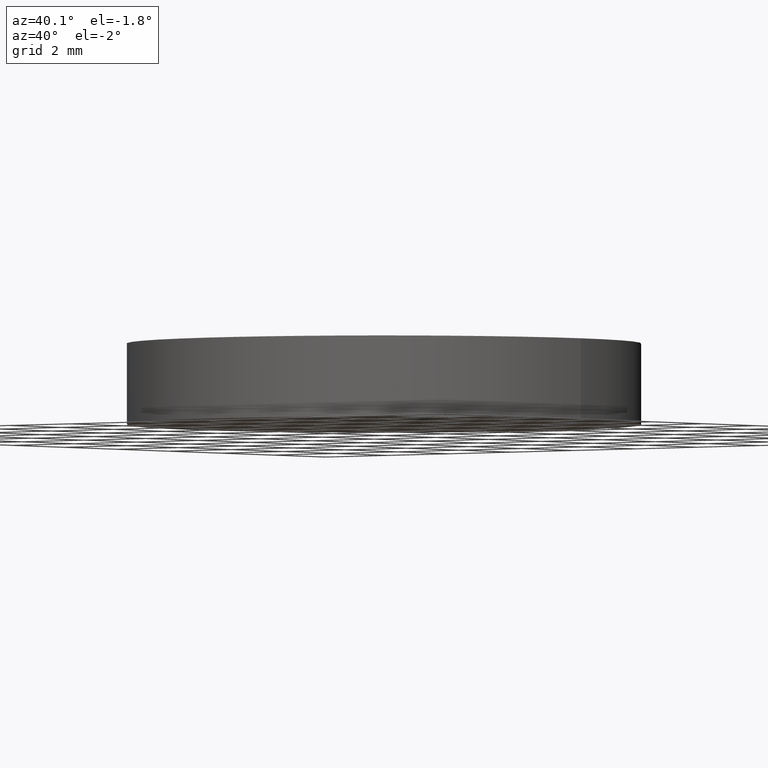
[diagram: clean part render]
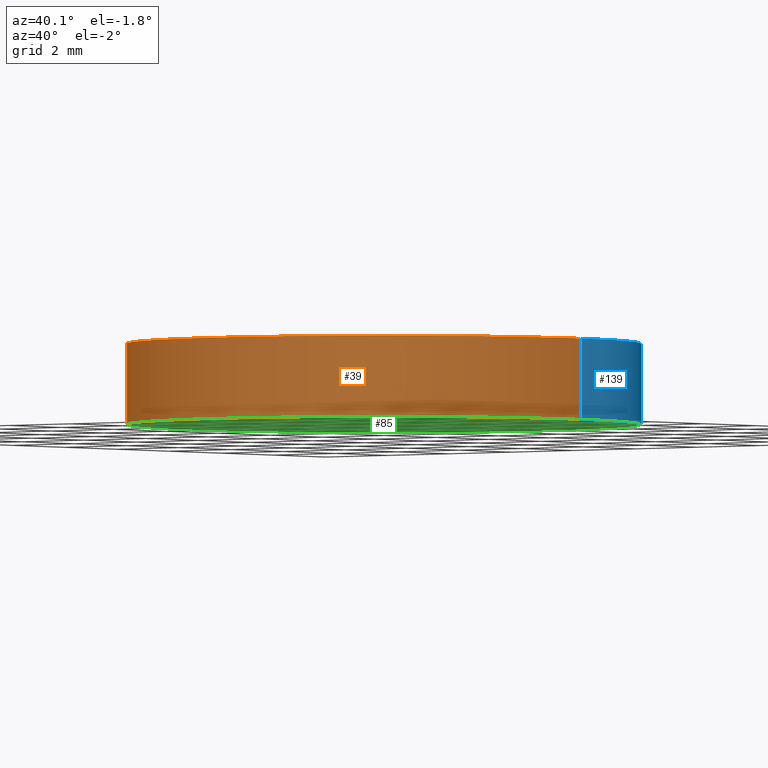
[diagram: same view with three faces highlighted in distinct colors, each labeled with its STEP entity id]
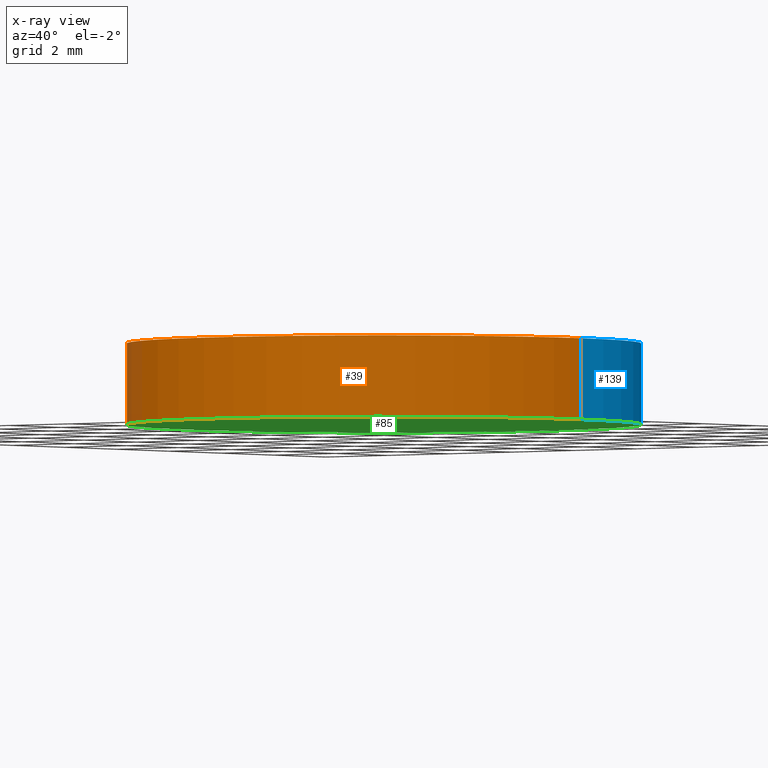
[diagram: x-ray of the same camera — body ghosted, the three highlighted faces saturated]
A machine part, auxiliary view with three faces highlighted in distinct colors.
The next image is the same camera in x-ray (body ghosted, the three faces saturated) — at least one of them is partly hidden behind the body in this view.
Their STEP definitions:

[orange] entity #39 — the highlighted cylindrical surface (partial cylindrical patch) has radius 6.35 mm, axis along (-0, -0, -1).
#2 = CARTESIAN_POINT ( 'NONE',  ( 6.349999999999999600, 7.776507174585692200E-016, 0.0000000000000000000 ) ) ;
#3 = VERTEX_POINT ( 'NONE', #93 ) ;
#8 = CARTESIAN_POINT ( 'NONE',  ( 0.0000000000000000000, 0.0000000000000000000, 0.0000000000000000000 ) ) ;
#13 = CIRCLE ( 'NONE', #20, 6.349999999999999600 ) ;
#20 = AXIS2_PLACEMENT_3D ( 'NONE', #65, #131, #52 ) ;
#25 = VERTEX_POINT ( 'NONE', #48 ) ;
#29 = VECTOR ( 'NONE', #107, 1000.000000000000000 ) ;
#30 = DIRECTION ( 'NONE',  ( -0.0000000000000000000, -0.0000000000000000000, -1.000000000000000000 ) ) ;
#33 = ORIENTED_EDGE ( 'NONE', *, *, #103, .T. ) ;
#36 = CARTESIAN_POINT ( 'NONE',  ( 0.0000000000000000000, 0.0000000000000000000, 2.000000000000000000 ) ) ;
#37 = AXIS2_PLACEMENT_3D ( 'NONE', #8, #71, #136 ) ;
#39 = ADVANCED_FACE ( 'NONE', ( #123 ), #53, .T. ) ;
#42 = LINE ( 'NONE', #54, #69 ) ;
#48 = CARTESIAN_POINT ( 'NONE',  ( -6.349999999999999600, 0.0000000000000000000, 0.0000000000000000000 ) ) ;
#52 = DIRECTION ( 'NONE',  ( 1.000000000000000000, 0.0000000000000000000, 0.0000000000000000000 ) ) ;
#53 = CYLINDRICAL_SURFACE ( 'NONE', #118, 6.349999999999999600 ) ;
#54 = CARTESIAN_POINT ( 'NONE',  ( -6.349999999999999600, 0.0000000000000000000, 2.000000000000000000 ) ) ;
#56 = ORIENTED_EDGE ( 'NONE', *, *, #99, .T. ) ;
#59 = ORIENTED_EDGE ( 'NONE', *, *, #83, .F. ) ;
#65 = CARTESIAN_POINT ( 'NONE',  ( 0.0000000000000000000, 0.0000000000000000000, 2.000000000000000000 ) ) ;
#69 = VECTOR ( 'NONE', #88, 1000.000000000000000 ) ;
#71 = DIRECTION ( 'NONE',  ( 0.0000000000000000000, 0.0000000000000000000, 1.000000000000000000 ) ) ;
#83 = EDGE_CURVE ( 'NONE', #117, #3, #13, .T. ) ;
#88 = DIRECTION ( 'NONE',  ( -0.0000000000000000000, -0.0000000000000000000, -1.000000000000000000 ) ) ;
#91 = CIRCLE ( 'NONE', #37, 6.349999999999999600 ) ;
#93 = CARTESIAN_POINT ( 'NONE',  ( 6.349999999999999600, 7.776507174585692200E-016, 2.000000000000000000 ) ) ;
#97 = VERTEX_POINT ( 'NONE', #2 ) ;
#99 = EDGE_CURVE ( 'NONE', #25, #97, #91, .T. ) ;
#103 = EDGE_CURVE ( 'NONE', #117, #25, #42, .T. ) ;
#106 = DIRECTION ( 'NONE',  ( -1.000000000000000000, 0.0000000000000000000, 0.0000000000000000000 ) ) ;
#107 = DIRECTION ( 'NONE',  ( -0.0000000000000000000, -0.0000000000000000000, -1.000000000000000000 ) ) ;
#109 = ORIENTED_EDGE ( 'NONE', *, *, #138, .F. ) ;
#113 = CARTESIAN_POINT ( 'NONE',  ( 6.349999999999999600, 7.776507174585692200E-016, 2.000000000000000000 ) ) ;
#115 = LINE ( 'NONE', #113, #29 ) ;
#117 = VERTEX_POINT ( 'NONE', #126 ) ;
#118 = AXIS2_PLACEMENT_3D ( 'NONE', #36, #30, #106 ) ;
#123 = FACE_OUTER_BOUND ( 'NONE', #140, .T. ) ;
#126 = CARTESIAN_POINT ( 'NONE',  ( -6.349999999999999600, 0.0000000000000000000, 2.000000000000000000 ) ) ;
#131 = DIRECTION ( 'NONE',  ( 0.0000000000000000000, 0.0000000000000000000, 1.000000000000000000 ) ) ;
#136 = DIRECTION ( 'NONE',  ( 1.000000000000000000, 0.0000000000000000000, 0.0000000000000000000 ) ) ;
#138 = EDGE_CURVE ( 'NONE', #3, #97, #115, .T. ) ;
#140 = EDGE_LOOP ( 'NONE', ( #109, #59, #33, #56 ) ) ;

[blue] entity #139 — the highlighted cylindrical surface (partial cylindrical patch) has radius 6.35 mm, axis along (-0, -0, -1).
#2 = CARTESIAN_POINT ( 'NONE',  ( 6.349999999999999600, 7.776507174585692200E-016, 0.0000000000000000000 ) ) ;
#3 = VERTEX_POINT ( 'NONE', #93 ) ;
#4 = EDGE_LOOP ( 'NONE', ( #86, #38, #72, #89 ) ) ;
#10 = DIRECTION ( 'NONE',  ( 1.000000000000000000, 0.0000000000000000000, 0.0000000000000000000 ) ) ;
#19 = CARTESIAN_POINT ( 'NONE',  ( 0.0000000000000000000, 0.0000000000000000000, 0.0000000000000000000 ) ) ;
#24 = CARTESIAN_POINT ( 'NONE',  ( 0.0000000000000000000, 0.0000000000000000000, 2.000000000000000000 ) ) ;
#25 = VERTEX_POINT ( 'NONE', #48 ) ;
#29 = VECTOR ( 'NONE', #107, 1000.000000000000000 ) ;
#31 = CARTESIAN_POINT ( 'NONE',  ( 0.0000000000000000000, 0.0000000000000000000, 2.000000000000000000 ) ) ;
#38 = ORIENTED_EDGE ( 'NONE', *, *, #138, .T. ) ;
#42 = LINE ( 'NONE', #54, #69 ) ;
#48 = CARTESIAN_POINT ( 'NONE',  ( -6.349999999999999600, 0.0000000000000000000, 0.0000000000000000000 ) ) ;
#54 = CARTESIAN_POINT ( 'NONE',  ( -6.349999999999999600, 0.0000000000000000000, 2.000000000000000000 ) ) ;
#60 = DIRECTION ( 'NONE',  ( -0.0000000000000000000, -0.0000000000000000000, -1.000000000000000000 ) ) ;
#64 = CYLINDRICAL_SURFACE ( 'NONE', #124, 6.349999999999999600 ) ;
#69 = VECTOR ( 'NONE', #88, 1000.000000000000000 ) ;
#72 = ORIENTED_EDGE ( 'NONE', *, *, #76, .T. ) ;
#74 = CIRCLE ( 'NONE', #129, 6.349999999999999600 ) ;
#76 = EDGE_CURVE ( 'NONE', #97, #25, #74, .T. ) ;
#86 = ORIENTED_EDGE ( 'NONE', *, *, #111, .F. ) ;
#87 = DIRECTION ( 'NONE',  ( 0.0000000000000000000, 0.0000000000000000000, 1.000000000000000000 ) ) ;
#88 = DIRECTION ( 'NONE',  ( -0.0000000000000000000, -0.0000000000000000000, -1.000000000000000000 ) ) ;
#89 = ORIENTED_EDGE ( 'NONE', *, *, #103, .F. ) ;
#92 = DIRECTION ( 'NONE',  ( 1.000000000000000000, 0.0000000000000000000, 0.0000000000000000000 ) ) ;
#93 = CARTESIAN_POINT ( 'NONE',  ( 6.349999999999999600, 7.776507174585692200E-016, 2.000000000000000000 ) ) ;
#97 = VERTEX_POINT ( 'NONE', #2 ) ;
#100 = CIRCLE ( 'NONE', #135, 6.349999999999999600 ) ;
#102 = DIRECTION ( 'NONE',  ( 0.0000000000000000000, 0.0000000000000000000, 1.000000000000000000 ) ) ;
#103 = EDGE_CURVE ( 'NONE', #117, #25, #42, .T. ) ;
#107 = DIRECTION ( 'NONE',  ( -0.0000000000000000000, -0.0000000000000000000, -1.000000000000000000 ) ) ;
#111 = EDGE_CURVE ( 'NONE', #3, #117, #100, .T. ) ;
#113 = CARTESIAN_POINT ( 'NONE',  ( 6.349999999999999600, 7.776507174585692200E-016, 2.000000000000000000 ) ) ;
#115 = LINE ( 'NONE', #113, #29 ) ;
#117 = VERTEX_POINT ( 'NONE', #126 ) ;
#121 = DIRECTION ( 'NONE',  ( -1.000000000000000000, 0.0000000000000000000, 0.0000000000000000000 ) ) ;
#124 = AXIS2_PLACEMENT_3D ( 'NONE', #31, #60, #121 ) ;
#126 = CARTESIAN_POINT ( 'NONE',  ( -6.349999999999999600, 0.0000000000000000000, 2.000000000000000000 ) ) ;
#129 = AXIS2_PLACEMENT_3D ( 'NONE', #19, #87, #10 ) ;
#130 = FACE_OUTER_BOUND ( 'NONE', #4, .T. ) ;
#135 = AXIS2_PLACEMENT_3D ( 'NONE', #24, #102, #92 ) ;
#138 = EDGE_CURVE ( 'NONE', #3, #97, #115, .T. ) ;
#139 = ADVANCED_FACE ( 'NONE', ( #130 ), #64, .T. ) ;

[green] entity #85 — the highlighted planar face has unit normal (0, 0, 1).
#1 = CARTESIAN_POINT ( 'NONE',  ( 0.0000000000000000000, 0.0000000000000000000, 0.0000000000000000000 ) ) ;
#2 = CARTESIAN_POINT ( 'NONE',  ( 6.349999999999999600, 7.776507174585692200E-016, 0.0000000000000000000 ) ) ;
#8 = CARTESIAN_POINT ( 'NONE',  ( 0.0000000000000000000, 0.0000000000000000000, 0.0000000000000000000 ) ) ;
#10 = DIRECTION ( 'NONE',  ( 1.000000000000000000, 0.0000000000000000000, 0.0000000000000000000 ) ) ;
#11 = DIRECTION ( 'NONE',  ( 1.000000000000000000, 0.0000000000000000000, -0.0000000000000000000 ) ) ;
#19 = CARTESIAN_POINT ( 'NONE',  ( 0.0000000000000000000, 0.0000000000000000000, 0.0000000000000000000 ) ) ;
#25 = VERTEX_POINT ( 'NONE', #48 ) ;
#37 = AXIS2_PLACEMENT_3D ( 'NONE', #8, #71, #136 ) ;
#41 = DIRECTION ( 'NONE',  ( 0.0000000000000000000, 0.0000000000000000000, 1.000000000000000000 ) ) ;
#48 = CARTESIAN_POINT ( 'NONE',  ( -6.349999999999999600, 0.0000000000000000000, 0.0000000000000000000 ) ) ;
#51 = ORIENTED_EDGE ( 'NONE', *, *, #76, .F. ) ;
#63 = EDGE_LOOP ( 'NONE', ( #114, #51 ) ) ;
#71 = DIRECTION ( 'NONE',  ( 0.0000000000000000000, 0.0000000000000000000, 1.000000000000000000 ) ) ;
#74 = CIRCLE ( 'NONE', #129, 6.349999999999999600 ) ;
#76 = EDGE_CURVE ( 'NONE', #97, #25, #74, .T. ) ;
#79 = FACE_OUTER_BOUND ( 'NONE', #63, .T. ) ;
#85 = ADVANCED_FACE ( 'NONE', ( #79 ), #120, .F. ) ;
#87 = DIRECTION ( 'NONE',  ( 0.0000000000000000000, 0.0000000000000000000, 1.000000000000000000 ) ) ;
#91 = CIRCLE ( 'NONE', #37, 6.349999999999999600 ) ;
#94 = AXIS2_PLACEMENT_3D ( 'NONE', #1, #41, #11 ) ;
#97 = VERTEX_POINT ( 'NONE', #2 ) ;
#99 = EDGE_CURVE ( 'NONE', #25, #97, #91, .T. ) ;
#114 = ORIENTED_EDGE ( 'NONE', *, *, #99, .F. ) ;
#120 = PLANE ( 'NONE',  #94 ) ;
#129 = AXIS2_PLACEMENT_3D ( 'NONE', #19, #87, #10 ) ;
#136 = DIRECTION ( 'NONE',  ( 1.000000000000000000, 0.0000000000000000000, 0.0000000000000000000 ) ) ;